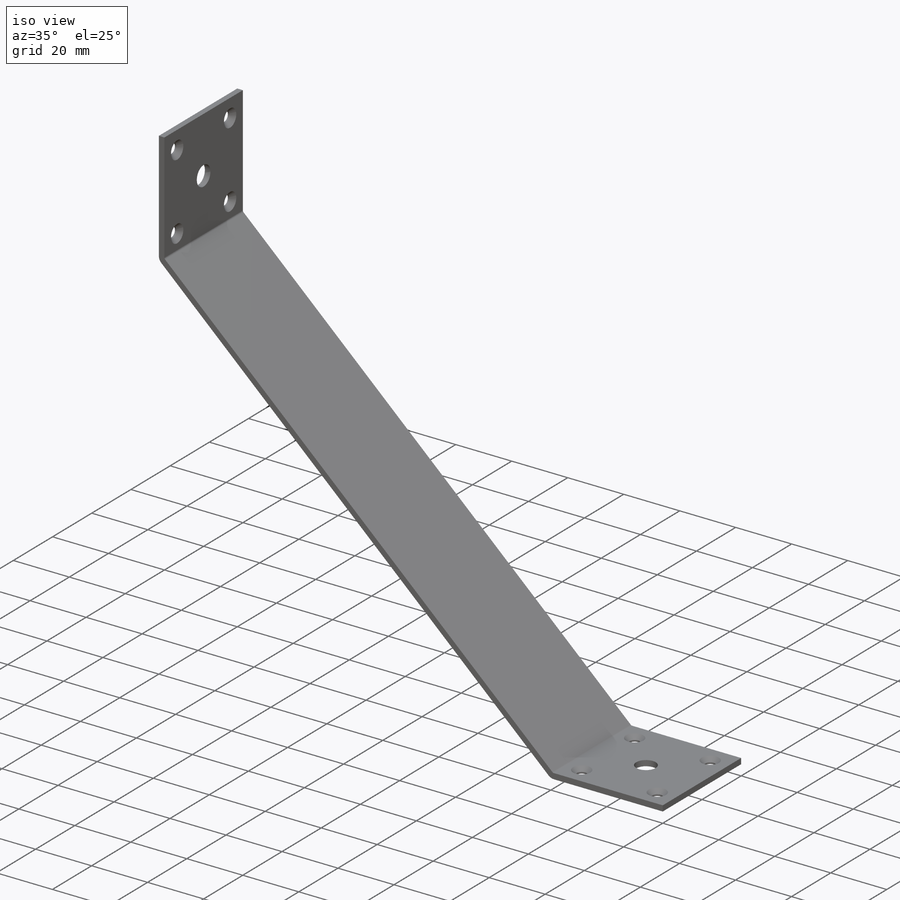
[diagram: iso view]
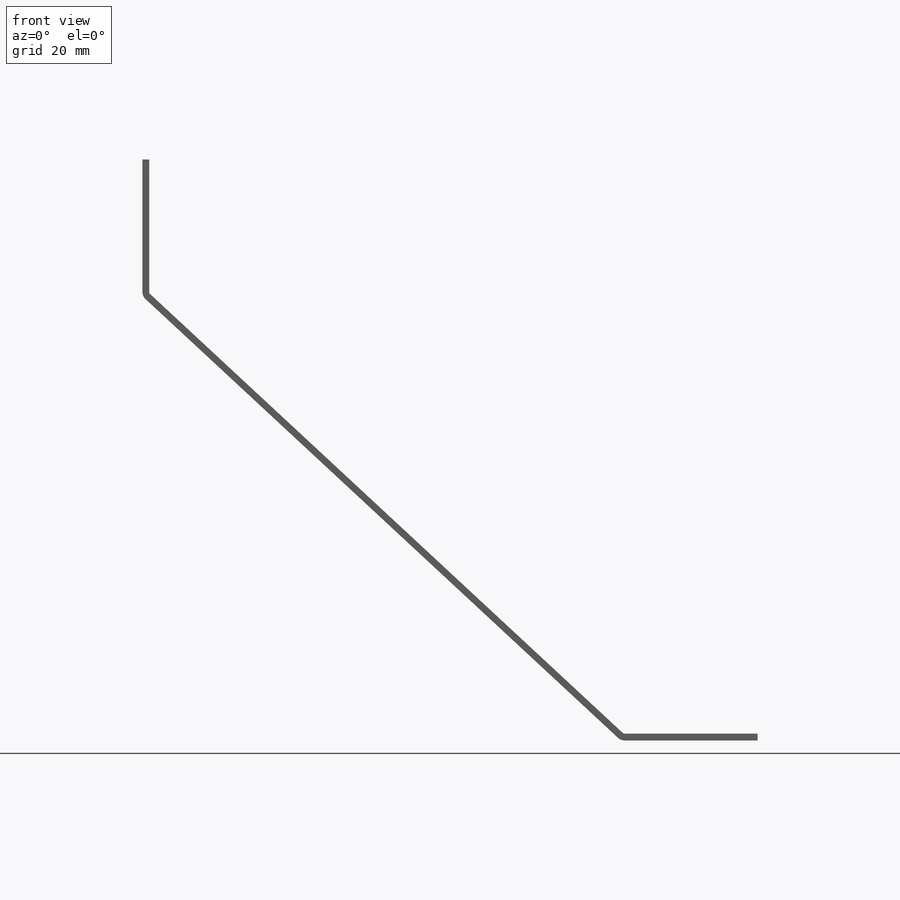
[diagram: front view]
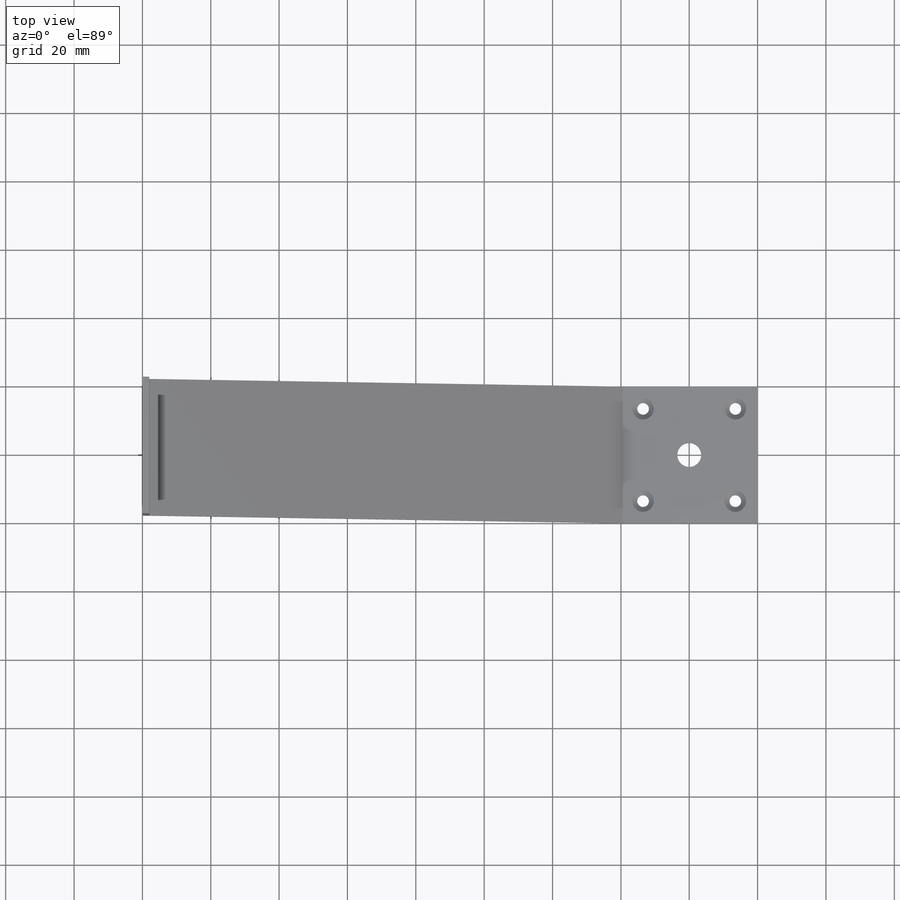
[diagram: top view]
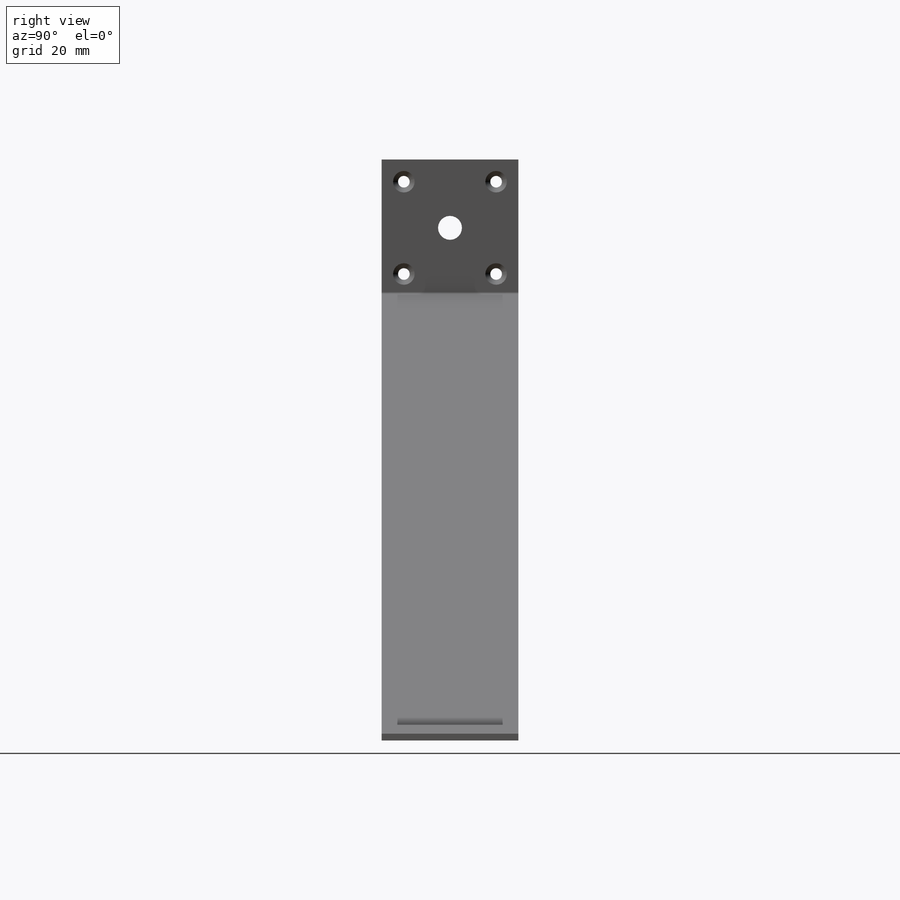
[diagram: right view]
SOLIDWORKS PART (.sldprt)
format: sldprt  version: not decoded by parser v0  size: 680,960 bytes
history: native  units: mm
features: sketch x17, sheet_metal_op x6, plane x3, hole x3, material x1 + 8 further entries (+10 scaffold rows collapsed)
feature tree (48):
  scaffold x10  (default folders/planes/origin — collapsed)
  material  "材質 <未指定>"
  plane  "前基準面"
  plane  "上基準面"
  plane  "右基準面"
  sketch  "草圖1"  dims[c1.D1=140.0mm c1.D2=130.0mm c1.D3=40.0mm c1.D4=40.0mm c2.D1=0.7366mm c2.D2=0.5 c2.D3=0.0mm c2.D6=500.0mm]
  sheet_metal_op  "基材-凸緣1"
  sheet_metal_op  "基材彎折2"
  hole  "M3 平錐坑頭螺釘的錐孔3"  [1 undecoded]
  sketch  "草圖6"  dims[c1.D1=20.0mm c1.D2=20.0mm c1.D3=6.5mm c1.D4=6.5mm c1.D5=27.0mm c1.D6=27.0mm c2.D5=27.0mm c2.D6=27.0mm]
  sketch  "草圖5"  dims[hole-wizard template sketch: 54 standard entries collapsed; hole parameters kept: c17.貫穿孔直徑=3.4mm c17.貫穿孔深度=2.0mm c17.近端錐孔直徑=6.3mm c17.D4=~3.666174mm c17.近端錐孔角度=90.0deg]
  hole  "M3 平錐坑頭螺釘的錐孔5"  [1 undecoded]
  sketch  "3D草圖4"  dims[c1.D1=6.5mm c1.D2=6.5mm c1.D3=20.0mm c1.D4=20.0mm c1.D5=~8.155279mm c1.D6=6.5mm c2.D6=~10.982257mm c2.D12=6.5mm c2.D7=~9.112501mm c3.D6=6.5mm c3.D8=~11.152511mm c3.D5=6.5mm c3.D9=27.0mm c3.D10=27.0mm c3.D11=27.0mm c4.D5=27.0mm]
  sketch  "草圖9"  dims[hole-wizard template sketch: 54 standard entries collapsed; hole parameters kept: c17.貫穿孔直徑=3.4mm c17.貫穿孔深度=2.0mm c17.近端錐孔直徑=6.3mm c17.D4=~3.666174mm c17.近端錐孔角度=90.0deg]
  hole  "Ø7.0 (7) 直徑孔1"  [1 undecoded]
  sketch  "3D草圖5"  dims[D1=20.0mm D2=20.0mm D3=20.0mm D4=20.0mm]
  sketch  "草圖10"  dims[hole-wizard template sketch: 46 standard entries collapsed; hole parameters kept: c15.鑽孔直徑=7.0mm c15.鑽孔深度=2.0mm c15.D3=~14.816244mm c15.導頭角度=118.0deg]
  sketch  "彎折-線1"
  sketch  "邊界方塊1"
  sheet_metal_op  "鈑金1"
  "平板-型式1"
  sketch  "彎折-線2"
  sketch  "邊界方塊2"
  "草圖變形1"
  sheet_metal_op  "鈑金7"
  "平板-型式1"
  sketch  "彎折-線2"
  sketch  "邊界方塊2"
  "草圖變形1"
  sheet_metal_op  "鈑金9"
  "平板-型式1"
  sketch  "彎折-線2"
  sketch  "邊界方塊2"
  "草圖變形1"
  sheet_metal_op  "鈑金10"
  "平板-型式1"
  sketch  "彎折-線2"
  sketch  "邊界方塊2"
  "草圖變形1"
decode coverage: 7 of 26 modeling features carry decoded parameters; 8 rows unclassified (native names shown)
note: ~ marks probable driven/reference dimensions
note: 3 parameter values undecoded
summary: no parameter record found for 3 features
note: suppression state not decoded; provenance and decode notes live in map.json
